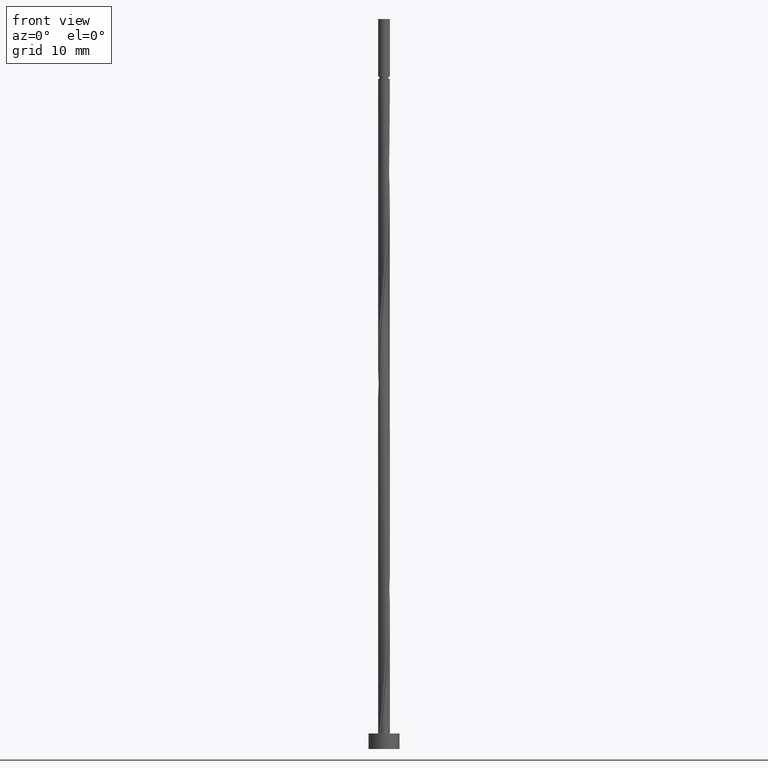
[diagram: clean part render]
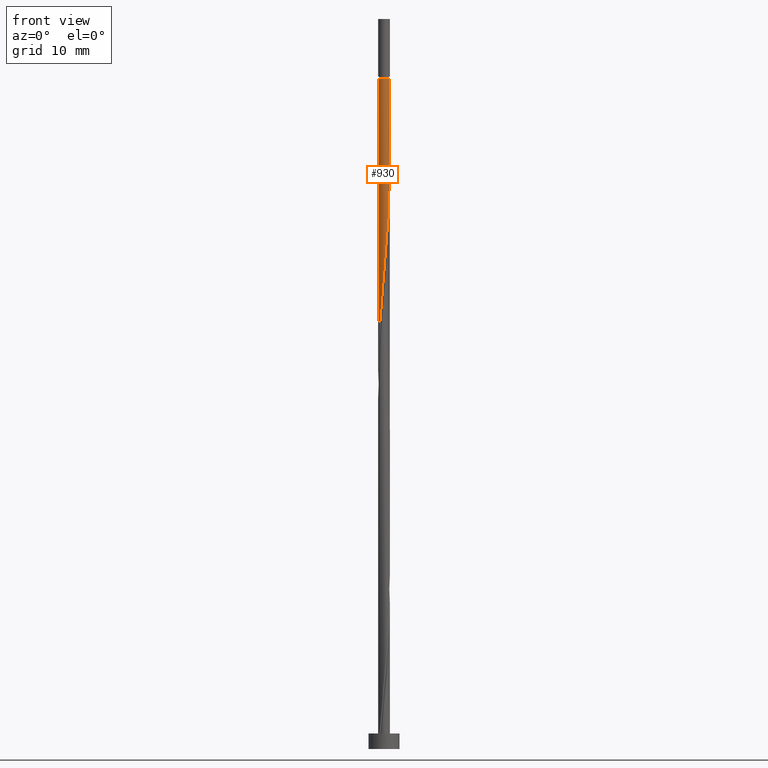
[diagram: same view with one face highlighted and labeled with its STEP entity id]
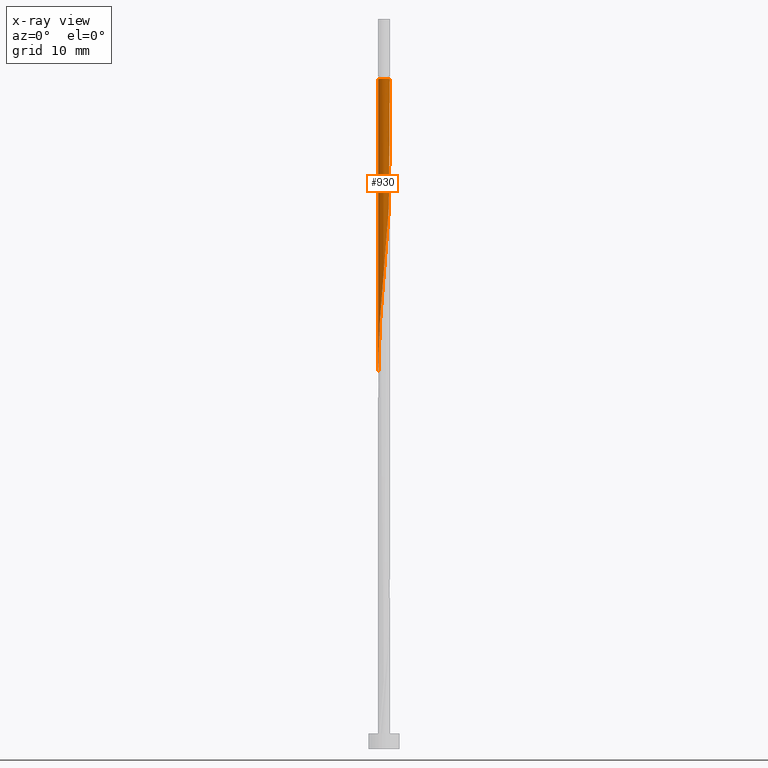
[diagram: x-ray of the same camera — body ghosted, the highlighted face saturated]
A machine part, front view. The second image highlights one B-rep face of the part: STEP entity #930.
The next image is the same camera in x-ray: the body ghosted, the highlighted face saturated — about 0% of this face is hidden behind the body in this view.
In plain terms, the highlighted cylindrical surface (edge-blend (fillet) strip) has radius 0.75 mm, axis along (-0, -0, -1).
Its self-contained STEP definition (entity closure, byte-faithful):
#5 = CARTESIAN_POINT ( 'NONE',  ( 0.4168099430121562921, -0.6292142056253025029, 66.58043618694318866 ) ) ;
#17 = CARTESIAN_POINT ( 'NONE',  ( 0.000000000000000000, 0.000000000000000000, 86.26793618694317445 ) ) ;
#33 = AXIS2_PLACEMENT_3D ( 'NONE', #751, #410, #1439 ) ;
#36 = CARTESIAN_POINT ( 'NONE',  ( -0.7500000000000001110, 0.000000000000000000, 94.00000000000000000 ) ) ;
#44 = CARTESIAN_POINT ( 'NONE',  ( -0.5206895540040777925, -0.5463729802117891499, 55.33043618694317445 ) ) ;
#124 = CARTESIAN_POINT ( 'NONE',  ( 0.7477494670858394477, 0.1025269702435437497, 75.95543618694320287 ) ) ;
#188 = CARTESIAN_POINT ( 'NONE',  ( 0.5463729802117891499, -0.5206895540040777925, 68.45543618694316024 ) ) ;
#198 = CARTESIAN_POINT ( 'NONE',  ( -0.2320627263925748029, -0.7181837760446293517, 59.08043618694317445 ) ) ;
#297 = CARTESIAN_POINT ( 'NONE',  ( 0.6292142056253023918, 0.4168099430121561810, 79.70543618694316024 ) ) ;
#365 = CARTESIAN_POINT ( 'NONE',  ( -0.7500000000000015543, -5.028119955064261352E-16, 48.56745326484923453 ) ) ;
#386 = CARTESIAN_POINT ( 'NONE',  ( -0.7500000000000013323, -0.009024672874794355953, 48.66781595307432440 ) ) ;
#398 = CARTESIAN_POINT ( 'NONE',  ( -0.1492481155659930447, -0.7350000000000013189, 60.01793618694316734 ) ) ;
#399 = LINE ( 'NONE', #716, #600 ) ;
#410 = DIRECTION ( 'NONE',  ( -0.000000000000000000, -0.000000000000000000, -1.000000000000000000 ) ) ;
#431 = DIRECTION ( 'NONE',  ( -0.000000000000000000, -0.000000000000000000, -1.000000000000000000 ) ) ;
#514 = CARTESIAN_POINT ( 'NONE',  ( 0.7181837760446293517, -0.2320627263925748585, 72.20543618694316024 ) ) ;
#548 = CARTESIAN_POINT ( 'NONE',  ( 0.6833611853866771169, -0.3090590401637165474, 71.26793618694318866 ) ) ;
#551 = EDGE_CURVE ( 'NONE', #939, #1170, #848, .T. ) ;
#559 = CARTESIAN_POINT ( 'NONE',  ( 0.3415781289176498814, -0.6677008176160333930, 65.64293618694316024 ) ) ;
#588 = ORIENTED_EDGE ( 'NONE', *, *, #597, .T. ) ;
#597 = EDGE_CURVE ( 'NONE', #1419, #1098, #2039, .T. ) ;
#600 = VECTOR ( 'NONE', #687, 1000.000000000000000 ) ;
#606 = CIRCLE ( 'NONE', #1942, 0.7500000000000015543 ) ;
#612 = CYLINDRICAL_SURFACE ( 'NONE', #33, 0.7500000000000001110 ) ;
#634 = CARTESIAN_POINT ( 'NONE',  ( 0.7061874296067640611, 0.2663463148231435818, 77.83043618694316024 ) ) ;
#645 = CARTESIAN_POINT ( 'NONE',  ( 0.7518162239553732862, -0.06643350473941130041, 74.08043618694317445 ) ) ;
#674 = CARTESIAN_POINT ( 'NONE',  ( 0.4533724539694679034, 0.5974557874702567384, 82.51793618694316024 ) ) ;
#687 = DIRECTION ( 'NONE',  ( -0.000000000000000000, -0.000000000000000000, -1.000000000000000000 ) ) ;
#716 = CARTESIAN_POINT ( 'NONE',  ( 0.7500000000000001110, 9.184850993605150903E-17, 94.00000000000000000 ) ) ;
#724 = CARTESIAN_POINT ( 'NONE',  ( -0.7061874296067640611, -0.2663463148231436373, 51.58043618694317445 ) ) ;
#739 = EDGE_CURVE ( 'NONE', #1170, #1072, #399, .T. ) ;
#751 = CARTESIAN_POINT ( 'NONE',  ( 0.000000000000000000, 0.000000000000000000, 94.00000000000000000 ) ) ;
#806 = CARTESIAN_POINT ( 'NONE',  ( 0.7497828455206064779, 0.01804673275206625932, 75.01793618694316024 ) ) ;
#848 = CIRCLE ( 'NONE', #1253, 0.7500000000000015543 ) ;
#850 = CARTESIAN_POINT ( 'NONE',  ( 0.5749518798146904253, 0.4815914616119725822, 80.64293618694317445 ) ) ;
#861 = DIRECTION ( 'NONE',  ( -0.000000000000000000, -0.000000000000000000, -1.000000000000000000 ) ) ;
#877 = CARTESIAN_POINT ( 'NONE',  ( 0.7500000000000014433, 9.184850993605166926E-17, 86.26793618694317445 ) ) ;
#911 = ORIENTED_EDGE ( 'NONE', *, *, #2100, .F. ) ;
#930 = ADVANCED_FACE ( 'NONE', ( #2052 ), #612, .T. ) ;
#939 = VERTEX_POINT ( 'NONE', #1149 ) ;
#969 = CARTESIAN_POINT ( 'NONE',  ( 0.7269684483463018099, 0.1844366425333435755, 76.89293618694317445 ) ) ;
#1042 = CARTESIAN_POINT ( 'NONE',  ( 0.1025269702435437913, -0.7477494670858394477, 62.83043618694317445 ) ) ;
#1051 = CARTESIAN_POINT ( 'NONE',  ( -0.5749518798146900922, -0.4815914616119725822, 54.39293618694316734 ) ) ;
#1072 = VERTEX_POINT ( 'NONE', #1794 ) ;
#1082 = DIRECTION ( 'NONE',  ( -1.000000000000000000, 0.000000000000000000, 0.000000000000000000 ) ) ;
#1087 = ORIENTED_EDGE ( 'NONE', *, *, #1757, .T. ) ;
#1098 = VERTEX_POINT ( 'NONE', #1540 ) ;
#1149 = CARTESIAN_POINT ( 'NONE',  ( 0.1492481155658876291, 0.7349999999989517141, 86.26793618694317445 ) ) ;
#1170 = VERTEX_POINT ( 'NONE', #877 ) ;
#1192 = CARTESIAN_POINT ( 'NONE',  ( -0.3090590401637165474, -0.6833611853866771169, 58.14293618694316734 ) ) ;
#1201 = CARTESIAN_POINT ( 'NONE',  ( -0.6292142056253025029, -0.4168099430121562921, 53.45543618694318155 ) ) ;
#1210 = CARTESIAN_POINT ( 'NONE',  ( 0.6485385947287247710, -0.3860553539348583474, 70.33043618694318866 ) ) ;
#1221 = CARTESIAN_POINT ( 'NONE',  ( 0.4815914616119725822, -0.5749518798146904253, 67.51793618694317445 ) ) ;
#1253 = AXIS2_PLACEMENT_3D ( 'NONE', #17, #861, #1505 ) ;
#1319 = CARTESIAN_POINT ( 'NONE',  ( 0.1492481155658876291, 0.7349999999989517141, 86.26793618694317445 ) ) ;
#1363 = CARTESIAN_POINT ( 'NONE',  ( 0.01804673275206628361, -0.7497828455206064779, 61.89293618694316734 ) ) ;
#1364 = DIRECTION ( 'NONE',  ( -0.000000000000000000, -0.000000000000000000, -1.000000000000000000 ) ) ;
#1419 = VERTEX_POINT ( 'NONE', #1501 ) ;
#1439 = DIRECTION ( 'NONE',  ( -1.000000000000000000, 0.000000000000000000, 0.000000000000000000 ) ) ;
#1501 = CARTESIAN_POINT ( 'NONE',  ( -0.7500000000000014433, 0.000000000000000000, 86.26793618694317445 ) ) ;
#1502 = CARTESIAN_POINT ( 'NONE',  ( -0.7269684483463018099, -0.1844366425333437420, 50.64293618694316734 ) ) ;
#1505 = DIRECTION ( 'NONE',  ( -1.000000000000000000, 0.000000000000000000, 0.000000000000000000 ) ) ;
#1513 = CARTESIAN_POINT ( 'NONE',  ( 0.7350000000000013189, -0.1492481155659930447, 73.14293618694317445 ) ) ;
#1527 = VECTOR ( 'NONE', #1364, 1000.000000000000000 ) ;
#1540 = CARTESIAN_POINT ( 'NONE',  ( -0.7500000000000015543, -5.028119955064261352E-16, 48.56745326484923453 ) ) ;
#1541 = CARTESIAN_POINT ( 'NONE',  ( 0.2663463148231436373, -0.7061874296067640611, 64.70543618694317445 ) ) ;
#1649 = CARTESIAN_POINT ( 'NONE',  ( 0.2320627263925732209, 0.7181837760446300178, 85.33043618694320287 ) ) ;
#1658 = CARTESIAN_POINT ( 'NONE',  ( 0.5206895540040780146, 0.5463729802117889278, 81.58043618694318866 ) ) ;
#1671 = CARTESIAN_POINT ( 'NONE',  ( 0.5974557874702567384, -0.4533724539694679034, 69.39293618694314603 ) ) ;
#1675 = EDGE_LOOP ( 'NONE', ( #1924, #1708, #2131, #1087, #588, #911 ) ) ;
#1692 = CARTESIAN_POINT ( 'NONE',  ( -0.7477494670858394477, -0.1025269702435437913, 49.70543618694317445 ) ) ;
#1708 = ORIENTED_EDGE ( 'NONE', *, *, #739, .T. ) ;
#1757 = EDGE_CURVE ( 'NONE', #1170, #1419, #606, .T. ) ;
#1761 = CARTESIAN_POINT ( 'NONE',  ( 0.000000000000000000, 0.000000000000000000, 86.26793618694317445 ) ) ;
#1794 = CARTESIAN_POINT ( 'NONE',  ( 0.7500000000000001110, 9.184850993605150903E-17, 48.34125036731667535 ) ) ;
#1859 = CARTESIAN_POINT ( 'NONE',  ( -0.4533724539694678479, -0.5974557874702567384, 56.26793618694317445 ) ) ;
#1870 = CARTESIAN_POINT ( 'NONE',  ( 0.1844366425333436588, -0.7269684483463018099, 63.76793618694318155 ) ) ;
#1924 = ORIENTED_EDGE ( 'NONE', *, *, #551, .T. ) ;
#1942 = AXIS2_PLACEMENT_3D ( 'NONE', #1761, #431, #1082 ) ;
#1955 = CARTESIAN_POINT ( 'NONE',  ( 0.3090590401637165474, 0.6833611853866768948, 84.39293618694317445 ) ) ;
#2005 = CARTESIAN_POINT ( 'NONE',  ( -0.7497828455206064779, -0.01804673275206633912, 48.76793618694316734 ) ) ;
#2017 = CARTESIAN_POINT ( 'NONE',  ( -0.3860553539348583474, -0.6485385947287247710, 57.20543618694317445 ) ) ;
#2029 = CARTESIAN_POINT ( 'NONE',  ( -0.06643350473941125878, -0.7518162239553732862, 60.95543618694317445 ) ) ;
#2038 = CARTESIAN_POINT ( 'NONE',  ( -0.6677008176160333930, -0.3415781289176498814, 52.51793618694316734 ) ) ;
#2039 = LINE ( 'NONE', #36, #1527 ) ;
#2052 = FACE_OUTER_BOUND ( 'NONE', #1675, .T. ) ;
#2081 =( BOUNDED_CURVE ( )  B_SPLINE_CURVE ( 2, ( #1319, #1649, #1955, #2150, #674, #1658, #850, #297, #2110, #634, #969, #124, #806, #645, #1513, #514, #548, #1210, #1671, #188, #1221, #5, #559, #1541, #1870, #1042, #1363, #2029, #398, #198, #1192, #2017, #1859, #44, #1051, #1201, #2038, #724, #1502, #1692, #2005, #386, #365 ),
 .UNSPECIFIED., .F., .F. ) 
 B_SPLINE_CURVE_WITH_KNOTS ( ( 3, 2, 2, 2, 2, 2, 2, 2, 2, 2, 2, 2, 2, 2, 2, 2, 2, 2, 2, 2, 2, 3 ),
 ( 0.2499999999999998057, 0.2589285714285712858, 0.2678571428571426827, 0.2767857142857141350, 0.2857142857142855319, 0.2946428571428569843, 0.3035714285714284366, 0.3124999999999998890, 0.3214285714285713413, 0.3303571428571427382, 0.3392857142857141906, 0.3482142857142855874, 0.3571428571428570953, 0.3660714285714284921, 0.3749999999999999445, 0.3839285714285713969, 0.3928571428571427937, 0.4017857142857143016, 0.4107142857142856984, 0.4196428571428571508, 0.4285714285714285476, 0.4295303401299219170 ),
 .UNSPECIFIED. ) 
 CURVE ( )  GEOMETRIC_REPRESENTATION_ITEM ( )  RATIONAL_B_SPLINE_CURVE ( ( 0.9090909090909088386, 0.9033747362665834890, 0.9090909090909087276, 0.9033747362665836000, 0.9090909090909087276, 0.9033747362665836000, 0.9090909090909087276, 0.9033747362665836000, 0.9090909090909087276, 0.9033747362665836000, 0.9090909090909087276, 0.9033747362665836000, 0.9090909090909087276, 0.9033747362665836000, 0.9090909090909087276, 0.9033747362665836000, 0.9090909090909087276, 0.9033747362665836000, 0.9090909090909087276, 0.9033747362665836000, 0.9090909090909087276, 0.9033747362665836000, 0.9090909090909087276, 0.9033747362665836000, 0.9090909090909087276, 0.9033747362665836000, 0.9090909090909087276, 0.9033747362665836000, 0.9090909090909087276, 0.9033747362665836000, 0.9090909090909087276, 0.9033747362665836000, 0.9090909090909087276, 0.9033747362665836000, 0.9090909090909087276, 0.9033747362665836000, 0.9090909090909087276, 0.9033747362665836000, 0.9090909090909087276, 0.9033747362665836000, 0.9090909090909087276, 0.9084770030214505132, 0.9079949616361788767 ) ) 
 REPRESENTATION_ITEM ( '' )  );
#2100 = EDGE_CURVE ( 'NONE', #939, #1098, #2081, .T. ) ;
#2110 = CARTESIAN_POINT ( 'NONE',  ( 0.6677008176160333930, 0.3415781289176498814, 78.76793618694314603 ) ) ;
#2131 = ORIENTED_EDGE ( 'NONE', *, *, #739, .F. ) ;
#2150 = CARTESIAN_POINT ( 'NONE',  ( 0.3860553539348583474, 0.6485385947287247710, 83.45543618694318866 ) ) ;